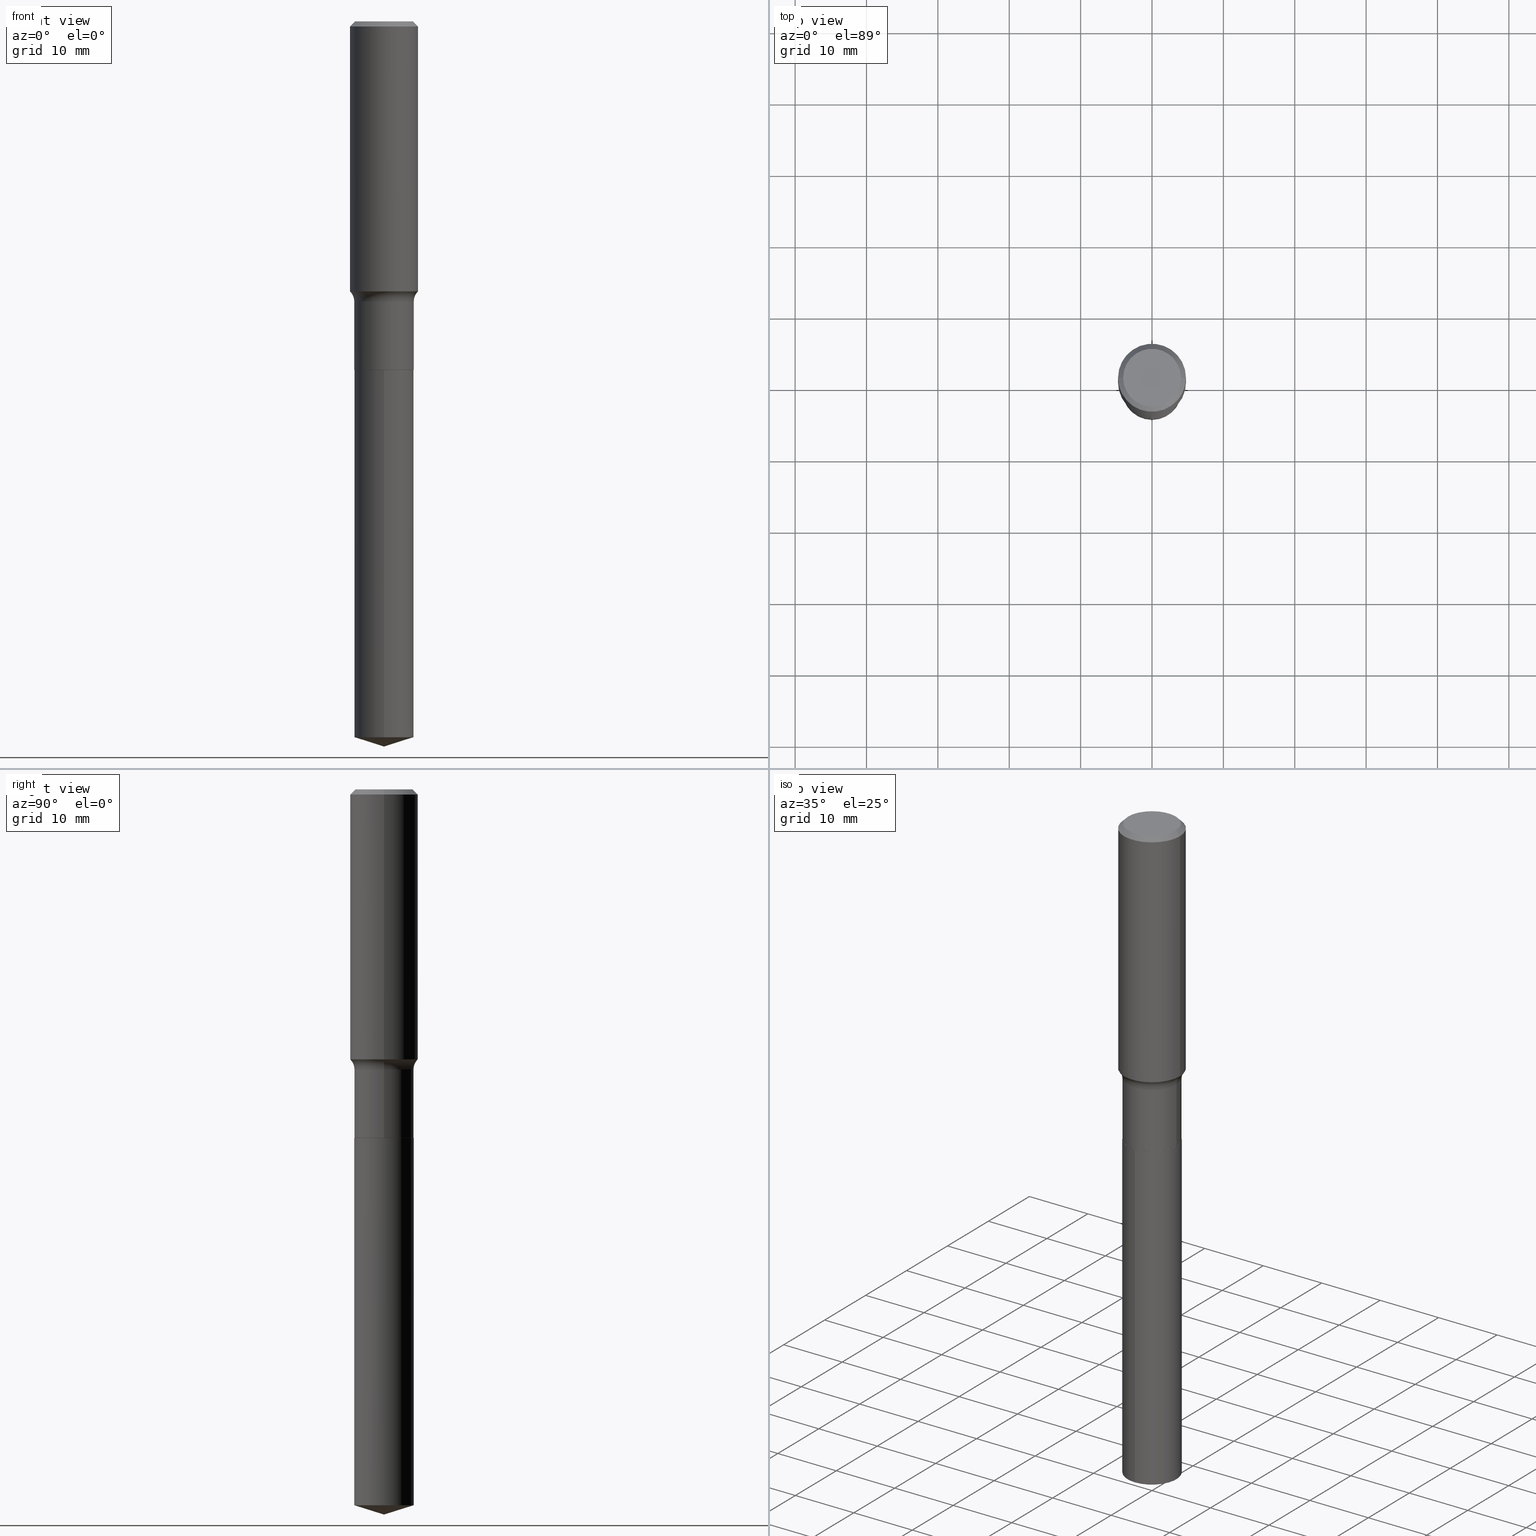
[diagram: canonical four-view strip — front | top / right | iso, engineering-drawing reading convention]
A machine part, canonical four-view strip (front | top / right | iso — engineering-drawing reading convention). The complete STEP part file that produces these views, byte-faithful:
ISO-10303-21;
HEADER;
FILE_DESCRIPTION (( 'STEP AP203' ),
    '1' );
FILE_NAME ('51519.STEP',
    '2024-04-19T12:56:40',
    ( '' ),
    ( '' ),
    'SwSTEP 2.0',
    'SolidWorks 2023',
    '' );
FILE_SCHEMA (( 'CONFIG_CONTROL_DESIGN' ));
ENDSEC;

DATA;
#1 = DIRECTION ( 'NONE',  ( -2.445654235410760522E-29, 3.491215793638075751E-15, 1.000000000000000000 ) ) ;
#2 = DATE_AND_TIME ( #379, #104 ) ;
#3 = AXIS2_PLACEMENT_3D ( 'NONE', #56, #35, #143 ) ;
#4 = CARTESIAN_POINT ( 'NONE',  ( 0.1875000000000001943, -6.507590134814400434E-15, -1.488847892416519159 ) ) ;
#5 = CIRCLE ( 'NONE', #490, 0.07799999999999995826 ) ;
#6 = CARTESIAN_POINT ( 'NONE',  ( 0.1875000000000001110, -1.309305502066175797E-15, 9.142831454617385217E-30 ) ) ;
#7 = ADVANCED_FACE ( 'NONE', ( #116 ), #62, .T. ) ;
#8 = APPROVAL_DATE_TIME ( #118, #383 ) ;
#9 = APPLICATION_CONTEXT ( 'configuration controlled 3d designs of mechanical parts and assemblies' ) ;
#10 = CARTESIAN_POINT ( 'NONE',  ( 0.1635500000000000009, -7.852341531058229130E-15, -1.921899999999999720 ) ) ;
#11 = CC_DESIGN_PERSON_AND_ORGANIZATION_ASSIGNMENT ( #196, #312, ( #170 ) ) ;
#12 = CARTESIAN_POINT ( 'NONE',  ( 0.2420499999999999596, -7.083168192111083892E-15, -1.544599999999999973 ) ) ;
#13 = CIRCLE ( 'NONE', #237, 0.1640500000000000014 ) ;
#14 = AXIS2_PLACEMENT_3D ( 'NONE', #482, #147, #300 ) ;
#15 = AXIS2_PLACEMENT_3D ( 'NONE', #317, #91, #217 ) ;
#16 = ADVANCED_FACE ( 'NONE', ( #262 ), #96, .T. ) ;
#17 = CARTESIAN_POINT ( 'NONE',  ( 4.699946498607213813E-29, -6.710277985122640475E-15, -1.921899999999999720 ) ) ;
#18 = ORIENTED_EDGE ( 'NONE', *, *, #239, .F. ) ;
#19 = CYLINDRICAL_SURFACE ( 'NONE', #478, 0.1875000000000001110 ) ;
#20 = VERTEX_POINT ( 'NONE', #302 ) ;
#21 = DIRECTION ( 'NONE',  ( -2.445468806185136597E-29, 3.491481338843145583E-15, 1.000000000000000000 ) ) ;
#22 = ORIENTED_EDGE ( 'NONE', *, *, #434, .F. ) ;
#23 = DIRECTION ( 'NONE',  ( -1.000000000000000000, 6.982962677686266711E-15, 0.000000000000000000 ) ) ;
#24 = VERTEX_POINT ( 'NONE', #40 ) ;
#25 = DIRECTION ( 'NONE',  ( 1.000000000000000000, -6.982962677686266711E-15, 0.000000000000000000 ) ) ;
#26 = ORIENTED_EDGE ( 'NONE', *, *, #354, .T. ) ;
#27 = COORDINATED_UNIVERSAL_TIME_OFFSET ( 5, 0, .BEHIND. ) ;
#28 = CARTESIAN_POINT ( 'NONE',  ( 3.777271118033562272E-29, -5.392942075977122606E-15, -1.544599999999999973 ) ) ;
#29 = VECTOR ( 'NONE', #362, 39.37007874015748143 ) ;
#30 = EDGE_CURVE ( 'NONE', #293, #356, #195, .T. ) ;
#31 = AXIS2_PLACEMENT_3D ( 'NONE', #160, #382, #84 ) ;
#32 = PERSON_AND_ORGANIZATION ( #142, #78 ) ;
#33 = DIRECTION ( 'NONE',  ( -2.445654235410760522E-29, 3.491215793638075751E-15, 1.000000000000000000 ) ) ;
#34 = DATE_AND_TIME ( #371, #331 ) ;
#35 = DIRECTION ( 'NONE',  ( -2.445468806185136597E-29, 3.491481338843145583E-15, 1.000000000000000000 ) ) ;
#36 = DIRECTION ( 'NONE',  ( -2.445468806185136597E-29, 3.491481338843145583E-15, 1.000000000000000000 ) ) ;
#37 = CC_DESIGN_APPROVAL ( #383, ( #170 ) ) ;
#38 = APPROVAL_ROLE ( '' ) ;
#39 = VECTOR ( 'NONE', #77, 39.37007874015748143 ) ;
#40 = CARTESIAN_POINT ( 'NONE',  ( -0.1593749999999999889, 1.162008633083729827E-15, 3.252968060227205293E-18 ) ) ;
#41 = AXIS2_PLACEMENT_3D ( 'NONE', #17, #258, #247 ) ;
#42 = DATE_TIME_ROLE ( 'classification_date' ) ;
#43 = CARTESIAN_POINT ( 'NONE',  ( 9.655759671398943871E-29, -1.378479120479867509E-14, -3.948275233684402696 ) ) ;
#44 = CARTESIAN_POINT ( 'NONE',  ( 4.699946498607213813E-29, -6.710277985122640475E-15, -1.921899999999999720 ) ) ;
#45 = EDGE_CURVE ( 'NONE', #291, #20, #372, .T. ) ;
#46 = CARTESIAN_POINT ( 'NONE',  ( 0.1635500000000000009, -7.852341531058229130E-15, -1.921899999999999720 ) ) ;
#47 = CARTESIAN_POINT ( 'NONE',  ( 4.699946498607213813E-29, -6.710277985122640475E-15, -1.921899999999999720 ) ) ;
#48 = DIRECTION ( 'NONE',  ( -2.445468806185136877E-29, 3.491481338843145188E-15, 1.000000000000000000 ) ) ;
#49 = FACE_OUTER_BOUND ( 'NONE', #327, .T. ) ;
#50 =( GEOMETRIC_REPRESENTATION_CONTEXT ( 3 ) GLOBAL_UNCERTAINTY_ASSIGNED_CONTEXT ( ( #190 ) ) GLOBAL_UNIT_ASSIGNED_CONTEXT ( ( #338, #113, #106 ) ) REPRESENTATION_CONTEXT ( 'NONE', 'WORKASPACE' ) );
#51 = ORIENTED_EDGE ( 'NONE', *, *, #333, .T. ) ;
#52 = AXIS2_PLACEMENT_3D ( 'NONE', #197, #332, #341 ) ;
#53 = ADVANCED_FACE ( 'NONE', ( #449 ), #244, .F. ) ;
#54 = DIRECTION ( 'NONE',  ( 1.000000000000000000, -6.982962677686264344E-15, 0.000000000000000000 ) ) ;
#55 = ORIENTED_EDGE ( 'NONE', *, *, #466, .F. ) ;
#56 = CARTESIAN_POINT ( 'NONE',  ( 0.000000000000000000, 0.000000000000000000, 0.000000000000000000 ) ) ;
#57 = ORIENTED_EDGE ( 'NONE', *, *, #271, .T. ) ;
#58 = ADVANCED_FACE ( 'NONE', ( #487 ), #151, .T. ) ;
#59 = LINE ( 'NONE', #323, #132 ) ;
#60 = ORIENTED_EDGE ( 'NONE', *, *, #381, .F. ) ;
#61 = CIRCLE ( 'NONE', #316, 0.1640499999999999459 ) ;
#62 = CONICAL_SURFACE ( 'NONE', #80, 124.8659371009143086, 1.265363707695889905 ) ;
#63 = VECTOR ( 'NONE', #344, 39.37007874015748143 ) ;
#64 = CARTESIAN_POINT ( 'NONE',  ( -0.1635500000000000009, -5.545536113612885610E-15, -1.921899999999999720 ) ) ;
#65 = EDGE_LOOP ( 'NONE', ( #400, #98, #406, #181 ) ) ;
#66 = VERTEX_POINT ( 'NONE', #340 ) ;
#67 = EDGE_CURVE ( 'NONE', #24, #66, #489, .T. ) ;
#68 = DIRECTION ( 'NONE',  ( 1.000000000000000000, 0.000000000000000000, 0.000000000000000000 ) ) ;
#69 = ORIENTED_EDGE ( 'NONE', *, *, #115, .T. ) ;
#70 = VECTOR ( 'NONE', #298, 39.37007874015748854 ) ;
#71 = DIRECTION ( 'NONE',  ( -2.438088387897960049E-29, 3.491481338843145188E-15, 1.000000000000000000 ) ) ;
#72 = EDGE_LOOP ( 'NONE', ( #176, #172, #470, #51 ) ) ;
#73 = CARTESIAN_POINT ( 'NONE',  ( 9.781904188785588369E-29, -1.396588387721154763E-14, -4.000000000000000000 ) ) ;
#74 = CARTESIAN_POINT ( 'NONE',  ( 4.699946498607213813E-29, -6.710277985122640475E-15, -1.921899999999999720 ) ) ;
#75 = APPLICATION_PROTOCOL_DEFINITION ( 'international standard', 'config_control_design', 1994, #305 ) ;
#76 = ADVANCED_FACE ( 'NONE', ( #235 ), #479, .T. ) ;
#77 = DIRECTION ( 'NONE',  ( -0.7071067811865454633, 2.468850131082235367E-15, -0.7071067811865495711 ) ) ;
#78 = ORGANIZATION ( 'UNSPECIFIED', 'UNSPECIFIED', '' ) ;
#79 = COORDINATED_UNIVERSAL_TIME_OFFSET ( 5, 0, .BEHIND. ) ;
#80 = AXIS2_PLACEMENT_3D ( 'NONE', #376, #33, #270 ) ;
#81 = LINE ( 'NONE', #10, #418 ) ;
#82 = CIRCLE ( 'NONE', #227, 0.1875000000000000278 ) ;
#83 = APPROVAL ( #425, 'UNSPECIFIED' ) ;
#84 = DIRECTION ( 'NONE',  ( 1.000000000000000000, -6.982962677686265922E-15, 0.000000000000000000 ) ) ;
#85 = APPROVAL_ROLE ( '' ) ;
#86 = CARTESIAN_POINT ( 'NONE',  ( -0.1875000000000001110, 1.332267629550188637E-15, -9.223003294227953596E-30 ) ) ;
#87 = DIRECTION ( 'NONE',  ( -2.445654235410760242E-29, 3.491215793638075751E-15, 1.000000000000000000 ) ) ;
#88 = CIRCLE ( 'NONE', #251, 0.07799999999999995826 ) ;
#89 = PLANE ( 'NONE',  #260 ) ;
#90 = ORIENTED_EDGE ( 'NONE', *, *, #134, .T. ) ;
#91 = DIRECTION ( 'NONE',  ( -2.445654235410760522E-29, 3.491215793638075751E-15, 1.000000000000000000 ) ) ;
#92 = ORIENTED_EDGE ( 'NONE', *, *, #357, .T. ) ;
#93 = CARTESIAN_POINT ( 'NONE',  ( -1.145555027274384725E-15, -0.1640500000000067182, -1.921899999999999276 ) ) ;
#94 = AXIS2_PLACEMENT_3D ( 'NONE', #178, #319, #283 ) ;
#95 = ORIENTED_EDGE ( 'NONE', *, *, #159, .T. ) ;
#96 = CONICAL_SURFACE ( 'NONE', #385, 0.1635500000000000009, 0.7853981633975507526 ) ;
#97 = DIRECTION ( 'NONE',  ( 2.445654235410760522E-29, -3.491215793638075751E-15, -1.000000000000000000 ) ) ;
#98 = ORIENTED_EDGE ( 'NONE', *, *, #152, .T. ) ;
#99 = DIRECTION ( 'NONE',  ( -2.445468806185136597E-29, 3.491481338843145583E-15, 1.000000000000000000 ) ) ;
#100 = EDGE_LOOP ( 'NONE', ( #322, #398, #155, #447 ) ) ;
#101 = CC_DESIGN_PERSON_AND_ORGANIZATION_ASSIGNMENT ( #32, #264, ( #128 ) ) ;
#102 = CARTESIAN_POINT ( 'NONE',  ( -0.1640500000000000014, 1.165645358014444365E-15, -8.069513015563172164E-30 ) ) ;
#103 = ORIENTED_EDGE ( 'NONE', *, *, #299, .F. ) ;
#104 = LOCAL_TIME ( 8, 56, 40.00000000000000000, #279 ) ;
#105 = CIRCLE ( 'NONE', #315, 0.1635500000000000009 ) ;
#106 =( NAMED_UNIT ( * ) SI_UNIT ( $, .STERADIAN. ) SOLID_ANGLE_UNIT ( ) );
#107 = EDGE_CURVE ( 'NONE', #282, #320, #201, .T. ) ;
#108 = DIRECTION ( 'NONE',  ( 1.000000000000000000, -6.982962677686265922E-15, 4.883557194083111780E-29 ) ) ;
#109 = LINE ( 'NONE', #263, #428 ) ;
#110 = APPROVAL_STATUS ( 'not_yet_approved' ) ;
#111 = ORIENTED_EDGE ( 'NONE', *, *, #204, .T. ) ;
#112 = VECTOR ( 'NONE', #416, 39.37007874015748143 ) ;
#113 =( NAMED_UNIT ( * ) PLANE_ANGLE_UNIT ( ) SI_UNIT ( $, .RADIAN. ) );
#114 = ORIENTED_EDGE ( 'NONE', *, *, #45, .F. ) ;
#115 = EDGE_CURVE ( 'NONE', #144, #286, #109, .T. ) ;
#116 = FACE_OUTER_BOUND ( 'NONE', #265, .T. ) ;
#117 = CC_DESIGN_PERSON_AND_ORGANIZATION_ASSIGNMENT ( #164, #199, ( #170 ) ) ;
#118 = DATE_AND_TIME ( #423, #445 ) ;
#119 = DIRECTION ( 'NONE',  ( -6.982962677686265133E-15, -1.000000000000000000, 3.330506545156066257E-15 ) ) ;
#120 = AXIS2_PLACEMENT_3D ( 'NONE', #483, #267, #68 ) ;
#121 = DIRECTION ( 'NONE',  ( -2.445654235410760522E-29, 3.491215793638075751E-15, 1.000000000000000000 ) ) ;
#122 = CARTESIAN_POINT ( 'NONE',  ( 0.1875000000000000278, -1.407503414721139120E-15, -0.02812500000000018804 ) ) ;
#123 = CARTESIAN_POINT ( 'NONE',  ( -0.1635500000000000009, -5.548185340786996811E-15, -1.921899999999999720 ) ) ;
#124 = SECURITY_CLASSIFICATION_LEVEL ( 'unclassified' ) ;
#125 = FACE_OUTER_BOUND ( 'NONE', #303, .T. ) ;
#126 = CLOSED_SHELL ( 'NONE', ( #407, #460, #7, #389, #325 ) ) ;
#127 = FACE_OUTER_BOUND ( 'NONE', #361, .T. ) ;
#128 = PRODUCT_DEFINITION ( 'UNKNOWN', '', #170, #232 ) ;
#129 = FACE_OUTER_BOUND ( 'NONE', #248, .T. ) ;
#130 = ORIENTED_EDGE ( 'NONE', *, *, #229, .F. ) ;
#131 = DIRECTION ( 'NONE',  ( -2.445468806185136597E-29, 3.491481338843145583E-15, 1.000000000000000000 ) ) ;
#132 = VECTOR ( 'NONE', #219, 39.37007874015748143 ) ;
#133 = ORIENTED_EDGE ( 'NONE', *, *, #67, .T. ) ;
#134 = EDGE_CURVE ( 'NONE', #291, #468, #186, .T. ) ;
#135 = CIRCLE ( 'NONE', #228, 0.1875000000000000278 ) ;
#136 = FACE_OUTER_BOUND ( 'NONE', #365, .T. ) ;
#137 = ORIENTED_EDGE ( 'NONE', *, *, #354, .F. ) ;
#138 = APPROVAL ( #110, 'UNSPECIFIED' ) ;
#139 = PRODUCT_DEFINITION_SHAPE ( 'NONE', 'NONE',  #128 ) ;
#140 = DIRECTION ( 'NONE',  ( -2.445468806185136597E-29, 3.491481338843145583E-15, 1.000000000000000000 ) ) ;
#141 = EDGE_LOOP ( 'NONE', ( #60, #111, #69, #475 ) ) ;
#142 = PERSON ( 'UNSPECIFIED', 'UNSPECIFIED', 'UNSPECIFIED', ('UNSPECIFIED'), ('UNSPECIFIED'), ('UNSPECIFIED') ) ;
#143 = DIRECTION ( 'NONE',  ( 1.000000000000000000, -6.982962677686266711E-15, 4.876176775795935232E-29 ) ) ;
#144 = VERTEX_POINT ( 'NONE', #457 ) ;
#145 = EDGE_CURVE ( 'NONE', #468, #291, #177, .T. ) ;
#146 = DIRECTION ( 'NONE',  ( -2.445654235410760522E-29, 3.491215793638075751E-15, 1.000000000000000000 ) ) ;
#147 = DIRECTION ( 'NONE',  ( -2.445468806185136597E-29, 3.491481338843145583E-15, 1.000000000000000000 ) ) ;
#148 = ORIENTED_EDGE ( 'NONE', *, *, #249, .F. ) ;
#149 = DIMENSIONAL_EXPONENTS ( 1.000000000000000000, 0.000000000000000000, 0.000000000000000000, 0.000000000000000000, 0.000000000000000000, 0.000000000000000000, 0.000000000000000000 ) ;
#150 = LENGTH_MEASURE_WITH_UNIT ( LENGTH_MEASURE( 0.02539999999999999897 ), #231 );
#151 = CYLINDRICAL_SURFACE ( 'NONE', #462, 0.1640500000000000014 ) ;
#152 = EDGE_CURVE ( 'NONE', #356, #293, #105, .T. ) ;
#153 = CLOSED_SHELL ( 'NONE', ( #168, #396, #373, #350, #58, #455, #53, #450, #76, #285, #484, #16 ) ) ;
#154 = DIRECTION ( 'NONE',  ( 1.000000000000000000, -6.982962677686265922E-15, 4.876176775795935793E-29 ) ) ;
#155 = ORIENTED_EDGE ( 'NONE', *, *, #257, .F. ) ;
#156 = COORDINATED_UNIVERSAL_TIME_OFFSET ( 5, 0, .BEHIND. ) ;
#157 = ORIENTED_EDGE ( 'NONE', *, *, #414, .F. ) ;
#158 = SHAPE_DEFINITION_REPRESENTATION ( #139, #405 ) ;
#159 = EDGE_CURVE ( 'NONE', #468, #363, #430, .T. ) ;
#160 = CARTESIAN_POINT ( 'NONE',  ( 4.699946498607213813E-29, -6.710277985122640475E-15, -1.921899999999999720 ) ) ;
#161 = VECTOR ( 'NONE', #431, 39.37007874015748143 ) ;
#162 = AXIS2_PLACEMENT_3D ( 'NONE', #348, #458, #198 ) ;
#163 = DIRECTION ( 'NONE',  ( -0.7071067811866199593, 7.493145998870616062E-15, 0.7071067811864750752 ) ) ;
#164 = PERSON_AND_ORGANIZATION ( #142, #78 ) ;
#165 = DIRECTION ( 'NONE',  ( 1.000000000000000000, -6.982962677686264344E-15, 0.000000000000000000 ) ) ;
#166 = ORIENTED_EDGE ( 'NONE', *, *, #67, .F. ) ;
#167 = DIRECTION ( 'NONE',  ( -2.445468806185136597E-29, 3.491481338843145583E-15, 1.000000000000000000 ) ) ;
#168 = ADVANCED_FACE ( 'NONE', ( #313 ), #377, .T. ) ;
#169 = LINE ( 'NONE', #441, #29 ) ;
#170 = PRODUCT_DEFINITION_FORMATION_WITH_SPECIFIED_SOURCE ( 'ANY', '', #443, .NOT_KNOWN. ) ;
#171 = CARTESIAN_POINT ( 'NONE',  ( 4.698723764204121011E-29, -6.708532244453218971E-15, -1.921399999999999997 ) ) ;
#172 = ORIENTED_EDGE ( 'NONE', *, *, #107, .F. ) ;
#173 = CARTESIAN_POINT ( 'NONE',  ( 0.000000000000000000, 0.000000000000000000, 0.000000000000000000 ) ) ;
#174 = EDGE_LOOP ( 'NONE', ( #442, #92 ) ) ;
#175 = CARTESIAN_POINT ( 'NONE',  ( 3.777271118033562272E-29, -5.392942075977122606E-15, -1.544599999999999973 ) ) ;
#176 = ORIENTED_EDGE ( 'NONE', *, *, #182, .F. ) ;
#177 = CIRCLE ( 'NONE', #210, 0.1640500000000000014 ) ;
#178 = CARTESIAN_POINT ( 'NONE',  ( 0.000000000000000000, 0.000000000000000000, 0.000000000000000000 ) ) ;
#179 = EDGE_LOOP ( 'NONE', ( #254, #395, #409, #22 ) ) ;
#180 = PLANE ( 'NONE',  #351 ) ;
#181 = ORIENTED_EDGE ( 'NONE', *, *, #204, .F. ) ;
#182 = EDGE_CURVE ( 'NONE', #320, #491, #88, .T. ) ;
#183 = CALENDAR_DATE ( 2024, 19, 4 ) ;
#184 = CARTESIAN_POINT ( 'NONE',  ( 0.000000000000000000, 0.000000000000000000, 0.000000000000000000 ) ) ;
#185 = SECURITY_CLASSIFICATION ( '', '', #124 ) ;
#186 = CIRCLE ( 'NONE', #452, 0.1640500000000000014 ) ;
#187 = FACE_OUTER_BOUND ( 'NONE', #256, .T. ) ;
#188 = CARTESIAN_POINT ( 'NONE',  ( 4.699946498607213813E-29, -6.710277985122640475E-15, -1.921899999999999720 ) ) ;
#189 = DATE_TIME_ROLE ( 'creation_date' ) ;
#190 = UNCERTAINTY_MEASURE_WITH_UNIT (LENGTH_MEASURE( 1.000000000000000082E-05 ), #338, 'distance_accuracy_value', 'NONE');
#191 = ORIENTED_EDGE ( 'NONE', *, *, #429, .F. ) ;
#192 = PERSON_AND_ORGANIZATION ( #142, #78 ) ;
#193 = DIRECTION ( 'NONE',  ( 1.000000000000000000, -6.982962677686266711E-15, 4.876176775795935232E-29 ) ) ;
#194 = VECTOR ( 'NONE', #48, 39.37007874015748143 ) ;
#195 = CIRCLE ( 'NONE', #393, 0.1635500000000000009 ) ;
#196 = PERSON_AND_ORGANIZATION ( #142, #78 ) ;
#197 = CARTESIAN_POINT ( 'NONE',  ( 6.877881017395742746E-31, -9.819791265496411169E-17, -0.02812500000000018804 ) ) ;
#198 = DIRECTION ( 'NONE',  ( 1.000000000000000000, -6.982962677686267499E-15, 4.876227444496879000E-29 ) ) ;
#199 = PERSON_AND_ORGANIZATION_ROLE ( 'design_supplier' ) ;
#200 = CARTESIAN_POINT ( 'NONE',  ( 9.782616941643042088E-29, -1.396486317455230301E-14, -4.000000000000000000 ) ) ;
#201 = CIRCLE ( 'NONE', #14, 0.1875000000000001943 ) ;
#202 = CARTESIAN_POINT ( 'NONE',  ( 4.698723764204121011E-29, -6.708532244453218971E-15, -1.921399999999999997 ) ) ;
#203 = LINE ( 'NONE', #6, #194 ) ;
#204 = EDGE_CURVE ( 'NONE', #289, #144, #221, .T. ) ;
#205 = DIRECTION ( 'NONE',  ( 0.7071067811866199593, -2.468850131083015945E-15, 0.7071067811864750752 ) ) ;
#206 = CC_DESIGN_PERSON_AND_ORGANIZATION_ASSIGNMENT ( #224, #448, ( #443 ) ) ;
#207 = MANIFOLD_SOLID_BREP ( 'Body-Move/Copy2[1]', #126 ) ;
#208 = TOROIDAL_SURFACE ( 'NONE', #236, 0.2420499999999999596, 0.07799999999999999989 ) ;
#209 = DIRECTION ( 'NONE',  ( 2.445468806185136597E-29, -3.491481338843145583E-15, -1.000000000000000000 ) ) ;
#210 = AXIS2_PLACEMENT_3D ( 'NONE', #281, #1, #343 ) ;
#211 = VERTEX_POINT ( 'NONE', #122 ) ;
#212 = APPROVAL_PERSON_ORGANIZATION ( #192, #138, #480 ) ;
#213 = EDGE_CURVE ( 'NONE', #24, #446, #370, .T. ) ;
#214 = DIRECTION ( 'NONE',  ( -2.445654235410760522E-29, 3.491215793638075751E-15, 1.000000000000000000 ) ) ;
#215 = ORIENTED_EDGE ( 'NONE', *, *, #466, .T. ) ;
#216 = MANIFOLD_SOLID_BREP ( 'Body-Move/Copy2[2]', #153 ) ;
#217 = DIRECTION ( 'NONE',  ( -6.982962677686265133E-15, -1.000000000000000000, 3.330506545156066257E-15 ) ) ;
#218 = ORIENTED_EDGE ( 'NONE', *, *, #492, .T. ) ;
#219 = DIRECTION ( 'NONE',  ( 0.7071067811865454633, -7.319954787623248157E-15, -0.7071067811865495711 ) ) ;
#220 = VERTEX_POINT ( 'NONE', #200 ) ;
#221 = CIRCLE ( 'NONE', #308, 0.1640500000000000014 ) ;
#222 = DIRECTION ( 'NONE',  ( 1.000000000000000000, -6.982962677686265922E-15, 4.883557194083111780E-29 ) ) ;
#223 = ORIENTED_EDGE ( 'NONE', *, *, #30, .T. ) ;
#224 = PERSON_AND_ORGANIZATION ( #142, #78 ) ;
#225 = ORIENTED_EDGE ( 'NONE', *, *, #134, .F. ) ;
#226 = ORIENTED_EDGE ( 'NONE', *, *, #30, .F. ) ;
#227 = AXIS2_PLACEMENT_3D ( 'NONE', #250, #394, #54 ) ;
#228 = AXIS2_PLACEMENT_3D ( 'NONE', #346, #167, #310 ) ;
#229 = EDGE_CURVE ( 'NONE', #211, #66, #135, .T. ) ;
#230 = ORIENTED_EDGE ( 'NONE', *, *, #107, .T. ) ;
#231 =( LENGTH_UNIT ( ) NAMED_UNIT ( * ) SI_UNIT ( $, .METRE. ) );
#232 = DESIGN_CONTEXT ( 'detailed design', #9, 'design' ) ;
#233 = DIRECTION ( 'NONE',  ( -2.445468806185136597E-29, 3.491481338843145583E-15, 1.000000000000000000 ) ) ;
#234 = CARTESIAN_POINT ( 'NONE',  ( -0.1640499999999999459, -4.885091802200726621E-15, -1.544599999999999973 ) ) ;
#235 = FACE_OUTER_BOUND ( 'NONE', #324, .T. ) ;
#236 = AXIS2_PLACEMENT_3D ( 'NONE', #175, #399, #222 ) ;
#237 = AXIS2_PLACEMENT_3D ( 'NONE', #390, #214, #472 ) ;
#238 = CARTESIAN_POINT ( 'NONE',  ( -0.1875000000000001943, -3.866017003198034421E-15, -1.488847892416519159 ) ) ;
#239 = EDGE_CURVE ( 'NONE', #282, #286, #5, .T. ) ;
#240 = DIRECTION ( 'NONE',  ( 1.000000000000000000, -6.982962677686265922E-15, 0.000000000000000000 ) ) ;
#241 = CC_DESIGN_DATE_AND_TIME_ASSIGNMENT ( #34, #189, ( #128 ) ) ;
#242 = APPROVAL_DATE_TIME ( #2, #83 ) ;
#243 = DIRECTION ( 'NONE',  ( -1.000000000000000000, 6.982962677686265922E-15, -4.876176775795935793E-29 ) ) ;
#244 = TOROIDAL_SURFACE ( 'NONE', #360, 0.2420499999999999596, 0.07799999999999999989 ) ;
#245 = DIRECTION ( 'NONE',  ( -2.445654235410760522E-29, 3.491215793638075751E-15, 1.000000000000000000 ) ) ;
#246 = DIRECTION ( 'NONE',  ( 1.000000000000000000, -6.982962677686265922E-15, 0.000000000000000000 ) ) ;
#247 = DIRECTION ( 'NONE',  ( -6.982962677686265133E-15, -1.000000000000000000, 3.330506545156066257E-15 ) ) ;
#248 = EDGE_LOOP ( 'NONE', ( #230, #57, #130, #103 ) ) ;
#249 = EDGE_CURVE ( 'NONE', #320, #282, #280, .T. ) ;
#250 = CARTESIAN_POINT ( 'NONE',  ( 6.877881017395742746E-31, -9.819791265496411169E-17, -0.02812500000000018804 ) ) ;
#251 = AXIS2_PLACEMENT_3D ( 'NONE', #349, #380, #459 ) ;
#252 = ORIENTED_EDGE ( 'NONE', *, *, #229, .T. ) ;
#253 = CYLINDRICAL_SURFACE ( 'NONE', #3, 0.1640500000000000014 ) ;
#254 = ORIENTED_EDGE ( 'NONE', *, *, #271, .F. ) ;
#255 = DIRECTION ( 'NONE',  ( 1.000000000000000000, -6.982962677686266711E-15, 0.000000000000000000 ) ) ;
#256 = EDGE_LOOP ( 'NONE', ( #226, #427 ) ) ;
#257 = EDGE_CURVE ( 'NONE', #363, #20, #471, .T. ) ;
#258 = DIRECTION ( 'NONE',  ( -2.445654235410760522E-29, 3.491215793638075751E-15, 1.000000000000000000 ) ) ;
#259 = ORIENTED_EDGE ( 'NONE', *, *, #381, .T. ) ;
#260 = AXIS2_PLACEMENT_3D ( 'NONE', #388, #276, #243 ) ;
#261 = LINE ( 'NONE', #73, #70 ) ;
#262 = FACE_OUTER_BOUND ( 'NONE', #65, .T. ) ;
#263 = CARTESIAN_POINT ( 'NONE',  ( 0.1640500000000000014, -1.145555027274432057E-15, 7.999368000693231542E-30 ) ) ;
#264 = PERSON_AND_ORGANIZATION_ROLE ( 'creator' ) ;
#265 = EDGE_LOOP ( 'NONE', ( #191, #215, #225 ) ) ;
#266 = AXIS2_PLACEMENT_3D ( 'NONE', #47, #121, #119 ) ;
#267 = DIRECTION ( 'NONE',  ( 0.000000000000000000, 0.000000000000000000, 1.000000000000000000 ) ) ;
#268 = CARTESIAN_POINT ( 'NONE',  ( 1.165645358014491105E-15, 0.1640499999999932568, -1.921900000000000386 ) ) ;
#269 = FACE_OUTER_BOUND ( 'NONE', #485, .T. ) ;
#270 = DIRECTION ( 'NONE',  ( -6.982962677686265922E-15, -1.000000000000000000, 3.500519750498725731E-15 ) ) ;
#271 = EDGE_CURVE ( 'NONE', #320, #66, #275, .T. ) ;
#272 = DIRECTION ( 'NONE',  ( -2.445468806185136597E-29, 3.491481338843145583E-15, 1.000000000000000000 ) ) ;
#273 = LOCAL_TIME ( 8, 56, 40.00000000000000000, #79 ) ;
#274 = CALENDAR_DATE ( 2024, 19, 4 ) ;
#275 = LINE ( 'NONE', #86, #63 ) ;
#276 = DIRECTION ( 'NONE',  ( 2.438088387897960049E-29, -3.491481338843145188E-15, -1.000000000000000000 ) ) ;
#277 = EDGE_CURVE ( 'NONE', #356, #289, #304, .T. ) ;
#278 = CARTESIAN_POINT ( 'NONE',  ( 3.640931078059081513E-29, -5.198284632748223059E-15, -1.488847892416519159 ) ) ;
#279 = COORDINATED_UNIVERSAL_TIME_OFFSET ( 5, 0, .BEHIND. ) ;
#280 = CIRCLE ( 'NONE', #413, 0.1875000000000001943 ) ;
#281 = CARTESIAN_POINT ( 'NONE',  ( 9.655759671398943871E-29, -1.378479120479867509E-14, -3.948275233684402696 ) ) ;
#282 = VERTEX_POINT ( 'NONE', #4 ) ;
#283 = DIRECTION ( 'NONE',  ( 1.000000000000000000, -6.982962677686266711E-15, 4.876176775795935793E-29 ) ) ;
#284 = CYLINDRICAL_SURFACE ( 'NONE', #94, 0.1875000000000001110 ) ;
#285 = ADVANCED_FACE ( 'NONE', ( #125 ), #89, .F. ) ;
#286 = VERTEX_POINT ( 'NONE', #384 ) ;
#287 = CIRCLE ( 'NONE', #368, 0.1640499999999999459 ) ;
#288 = DIRECTION ( 'NONE',  ( 1.000000000000000000, -6.982962677686266711E-15, 4.876176775795935793E-29 ) ) ;
#289 = VERTEX_POINT ( 'NONE', #426 ) ;
#290 = FACE_OUTER_BOUND ( 'NONE', #174, .T. ) ;
#291 = VERTEX_POINT ( 'NONE', #454 ) ;
#292 = DIRECTION ( 'NONE',  ( 1.000000000000000000, -6.982962677686267499E-15, 4.876227444496879000E-29 ) ) ;
#293 = VERTEX_POINT ( 'NONE', #46 ) ;
#294 = CC_DESIGN_DATE_AND_TIME_ASSIGNMENT ( #421, #42, ( #185 ) ) ;
#295 = CARTESIAN_POINT ( 'NONE',  ( -8.650333925410697060E-28, 1.234840671685305030E-13, 35.37007874015748143 ) ) ;
#296 = VECTOR ( 'NONE', #163, 39.37007874015748143 ) ;
#297 = ORIENTED_EDGE ( 'NONE', *, *, #277, .T. ) ;
#298 = DIRECTION ( 'NONE',  ( -6.659769872151627355E-15, -0.9537169507482260444, 0.3007057995042755061 ) ) ;
#299 = EDGE_CURVE ( 'NONE', #282, #211, #203, .T. ) ;
#300 = DIRECTION ( 'NONE',  ( 1.000000000000000000, -6.982962677686265922E-15, 0.000000000000000000 ) ) ;
#301 = ORIENTED_EDGE ( 'NONE', *, *, #429, .T. ) ;
#302 = CARTESIAN_POINT ( 'NONE',  ( 1.165645358014540803E-15, 0.1640499999999932568, -1.921900000000000386 ) ) ;
#303 = EDGE_LOOP ( 'NONE', ( #473, #369 ) ) ;
#304 = LINE ( 'NONE', #123, #296 ) ;
#305 = APPLICATION_CONTEXT ( 'configuration controlled 3d designs of mechanical parts and assemblies' ) ;
#306 = DIRECTION ( 'NONE',  ( -2.445468806185136597E-29, 3.491481338843145583E-15, 1.000000000000000000 ) ) ;
#307 = AXIS2_PLACEMENT_3D ( 'NONE', #465, #97, #402 ) ;
#308 = AXIS2_PLACEMENT_3D ( 'NONE', #202, #306, #165 ) ;
#309 = DIRECTION ( 'NONE',  ( -2.445468806185136877E-29, 3.491481338843145188E-15, 1.000000000000000000 ) ) ;
#310 = DIRECTION ( 'NONE',  ( 1.000000000000000000, -6.982962677686264344E-15, 0.000000000000000000 ) ) ;
#311 = ORIENTED_EDGE ( 'NONE', *, *, #182, .T. ) ;
#312 = PERSON_AND_ORGANIZATION_ROLE ( 'creator' ) ;
#313 = FACE_OUTER_BOUND ( 'NONE', #404, .T. ) ;
#314 = APPROVAL_PERSON_ORGANIZATION ( #342, #83, #85 ) ;
#315 = AXIS2_PLACEMENT_3D ( 'NONE', #44, #272, #240 ) ;
#316 = AXIS2_PLACEMENT_3D ( 'NONE', #488, #334, #25 ) ;
#317 = CARTESIAN_POINT ( 'NONE',  ( 4.699946498607213813E-29, -6.710277985122640475E-15, -1.921899999999999720 ) ) ;
#318 = EDGE_CURVE ( 'NONE', #293, #144, #81, .T. ) ;
#319 = DIRECTION ( 'NONE',  ( -2.445468806185136597E-29, 3.491481338843145583E-15, 1.000000000000000000 ) ) ;
#320 = VERTEX_POINT ( 'NONE', #238 ) ;
#321 = CARTESIAN_POINT ( 'NONE',  ( 6.877881017395742746E-31, -9.819791265496411169E-17, -0.02812500000000018804 ) ) ;
#322 = ORIENTED_EDGE ( 'NONE', *, *, #145, .T. ) ;
#323 = CARTESIAN_POINT ( 'NONE',  ( 0.1875000000000000278, -1.384541287237126674E-15, -0.02812500000000018804 ) ) ;
#324 = EDGE_LOOP ( 'NONE', ( #137, #453, #133, #433 ) ) ;
#325 = ADVANCED_FACE ( 'NONE', ( #290 ), #397, .F. ) ;
#326 = FACE_OUTER_BOUND ( 'NONE', #100, .T. ) ;
#327 = EDGE_LOOP ( 'NONE', ( #157, #26, #252, #166 ) ) ;
#328 = ORIENTED_EDGE ( 'NONE', *, *, #318, .F. ) ;
#329 = EDGE_CURVE ( 'NONE', #144, #289, #345, .T. ) ;
#330 = DATE_AND_TIME ( #183, #481 ) ;
#331 = LOCAL_TIME ( 8, 56, 40.00000000000000000, #410 ) ;
#332 = DIRECTION ( 'NONE',  ( 2.445468806185136597E-29, -3.491481338843145583E-15, -1.000000000000000000 ) ) ;
#333 = EDGE_CURVE ( 'NONE', #286, #491, #287, .T. ) ;
#334 = DIRECTION ( 'NONE',  ( -2.445468806185136597E-29, 3.491481338843145583E-15, 1.000000000000000000 ) ) ;
#335 = DIRECTION ( 'NONE',  ( 1.000000000000000000, -6.982962677686265922E-15, 0.000000000000000000 ) ) ;
#336 = PERSON_AND_ORGANIZATION ( #142, #78 ) ;
#337 = DIRECTION ( 'NONE',  ( 1.000000000000000000, -6.982962677686265922E-15, 0.000000000000000000 ) ) ;
#338 =( CONVERSION_BASED_UNIT ( 'INCH', #150 ) LENGTH_UNIT ( ) NAMED_UNIT ( #149 ) );
#339 = CC_DESIGN_APPROVAL ( #83, ( #185 ) ) ;
#340 = CARTESIAN_POINT ( 'NONE',  ( -0.1875000000000000278, -1.315973643151404751E-15, -0.02812500000000018804 ) ) ;
#341 = DIRECTION ( 'NONE',  ( -1.000000000000000000, 6.982962677686266711E-15, 0.000000000000000000 ) ) ;
#342 = PERSON_AND_ORGANIZATION ( #142, #78 ) ;
#343 = DIRECTION ( 'NONE',  ( -6.982962677686265133E-15, -1.000000000000000000, 3.330506545156066257E-15 ) ) ;
#344 = DIRECTION ( 'NONE',  ( -2.445468806185136877E-29, 3.491481338843145188E-15, 1.000000000000000000 ) ) ;
#345 = CIRCLE ( 'NONE', #401, 0.1640500000000000014 ) ;
#346 = CARTESIAN_POINT ( 'NONE',  ( 6.877881017395742746E-31, -9.819791265496411169E-17, -0.02812500000000018804 ) ) ;
#347 = PERSON_AND_ORGANIZATION ( #142, #78 ) ;
#348 = CARTESIAN_POINT ( 'NONE',  ( -7.955031918821655674E-47, 1.135767727816384611E-32, 3.252968060235159768E-18 ) ) ;
#349 = CARTESIAN_POINT ( 'NONE',  ( -0.2420499999999999596, -3.673073384069800985E-15, -1.544599999999999973 ) ) ;
#350 = ADVANCED_FACE ( 'NONE', ( #127 ), #208, .F. ) ;
#351 = AXIS2_PLACEMENT_3D ( 'NONE', #444, #71, #154 ) ;
#352 = CYLINDRICAL_SURFACE ( 'NONE', #41, 0.1640500000000000014 ) ;
#353 = ORIENTED_EDGE ( 'NONE', *, *, #333, .F. ) ;
#354 = EDGE_CURVE ( 'NONE', #446, #211, #59, .T. ) ;
#355 = CARTESIAN_POINT ( 'NONE',  ( 0.1593749999999999889, -1.238966577815982298E-15, 3.252968060243383104E-18 ) ) ;
#356 = VERTEX_POINT ( 'NONE', #64 ) ;
#357 = EDGE_CURVE ( 'NONE', #20, #363, #13, .T. ) ;
#358 = ORIENTED_EDGE ( 'NONE', *, *, #329, .T. ) ;
#359 = CYLINDRICAL_SURFACE ( 'NONE', #15, 0.1640500000000000014 ) ;
#360 = AXIS2_PLACEMENT_3D ( 'NONE', #28, #374, #108 ) ;
#361 = EDGE_LOOP ( 'NONE', ( #148, #311, #218, #18 ) ) ;
#362 = DIRECTION ( 'NONE',  ( 6.776566513254253404E-15, 0.9537169507482281539, 0.3007057995042689003 ) ) ;
#363 = VERTEX_POINT ( 'NONE', #93 ) ;
#364 = APPLICATION_PROTOCOL_DEFINITION ( 'international standard', 'config_control_design', 1994, #9 ) ;
#365 = EDGE_LOOP ( 'NONE', ( #114, #90, #95, #391 ) ) ;
#366 = CC_DESIGN_PERSON_AND_ORGANIZATION_ASSIGNMENT ( #347, #386, ( #185 ) ) ;
#367 = APPROVAL_DATE_TIME ( #330, #138 ) ;
#368 = AXIS2_PLACEMENT_3D ( 'NONE', #439, #99, #255 ) ;
#369 = ORIENTED_EDGE ( 'NONE', *, *, #414, .T. ) ;
#370 = CIRCLE ( 'NONE', #162, 0.1593749999999999889 ) ;
#371 = CALENDAR_DATE ( 2024, 19, 4 ) ;
#372 = LINE ( 'NONE', #268, #112 ) ;
#373 = ADVANCED_FACE ( 'NONE', ( #129 ), #284, .T. ) ;
#374 = DIRECTION ( 'NONE',  ( -2.445468806185136597E-29, 3.491481338843145583E-15, 1.000000000000000000 ) ) ;
#375 = CC_DESIGN_SECURITY_CLASSIFICATION ( #185, ( #170 ) ) ;
#376 = CARTESIAN_POINT ( 'NONE',  ( -8.650333925410697060E-28, 1.234840671685305030E-13, 35.37007874015748143 ) ) ;
#377 = CONICAL_SURFACE ( 'NONE', #31, 0.1635500000000000009, 0.7853981633975507526 ) ;
#378 = CC_DESIGN_APPROVAL ( #138, ( #128 ) ) ;
#379 = CALENDAR_DATE ( 2024, 19, 4 ) ;
#380 = DIRECTION ( 'NONE',  ( 7.105427357601001859E-15, 1.000000000000000000, -3.491481338843145583E-15 ) ) ;
#381 = EDGE_CURVE ( 'NONE', #289, #491, #432, .T. ) ;
#382 = DIRECTION ( 'NONE',  ( -2.445468806185136597E-29, 3.491481338843145583E-15, 1.000000000000000000 ) ) ;
#383 = APPROVAL ( #486, 'UNSPECIFIED' ) ;
#384 = CARTESIAN_POINT ( 'NONE',  ( 0.1640499999999999459, -6.538497103251554269E-15, -1.544599999999999973 ) ) ;
#385 = AXIS2_PLACEMENT_3D ( 'NONE', #188, #412, #335 ) ;
#386 = PERSON_AND_ORGANIZATION_ROLE ( 'classification_officer' ) ;
#387 = DIRECTION ( 'NONE',  ( -6.982962677686265133E-15, -1.000000000000000000, 3.330506545156066257E-15 ) ) ;
#388 = CARTESIAN_POINT ( 'NONE',  ( -3.977515959410827837E-47, 5.678838639081923055E-33, 1.626484030117579884E-18 ) ) ;
#389 = ADVANCED_FACE ( 'NONE', ( #136 ), #359, .T. ) ;
#390 = CARTESIAN_POINT ( 'NONE',  ( 4.699946498607213813E-29, -6.710277985122640475E-15, -1.921899999999999720 ) ) ;
#391 = ORIENTED_EDGE ( 'NONE', *, *, #357, .F. ) ;
#392 = APPROVAL_PERSON_ORGANIZATION ( #336, #383, #38 ) ;
#393 = AXIS2_PLACEMENT_3D ( 'NONE', #74, #233, #337 ) ;
#394 = DIRECTION ( 'NONE',  ( -2.445468806185136597E-29, 3.491481338843145583E-15, 1.000000000000000000 ) ) ;
#395 = ORIENTED_EDGE ( 'NONE', *, *, #249, .T. ) ;
#396 = ADVANCED_FACE ( 'NONE', ( #49 ), #456, .T. ) ;
#397 = PLANE ( 'NONE',  #307 ) ;
#398 = ORIENTED_EDGE ( 'NONE', *, *, #45, .T. ) ;
#399 = DIRECTION ( 'NONE',  ( -2.445468806185136597E-29, 3.491481338843145583E-15, 1.000000000000000000 ) ) ;
#400 = ORIENTED_EDGE ( 'NONE', *, *, #277, .F. ) ;
#401 = AXIS2_PLACEMENT_3D ( 'NONE', #171, #21, #467 ) ;
#402 = DIRECTION ( 'NONE',  ( 6.982962677686265922E-15, 1.000000000000000000, -3.491215793638075751E-15 ) ) ;
#403 = CONICAL_SURFACE ( 'NONE', #463, 124.8659371009143086, 1.265363707695889905 ) ;
#404 = EDGE_LOOP ( 'NONE', ( #223, #297, #451, #328 ) ) ;
#405 = ADVANCED_BREP_SHAPE_REPRESENTATION ( '51519', ( #207, #216, #120 ), #50 ) ;
#406 = ORIENTED_EDGE ( 'NONE', *, *, #318, .T. ) ;
#407 = ADVANCED_FACE ( 'NONE', ( #326 ), #352, .T. ) ;
#408 = MECHANICAL_CONTEXT ( 'NONE', #305, 'mechanical' ) ;
#409 = ORIENTED_EDGE ( 'NONE', *, *, #299, .T. ) ;
#410 = COORDINATED_UNIVERSAL_TIME_OFFSET ( 5, 0, .BEHIND. ) ;
#411 = CIRCLE ( 'NONE', #420, 0.1593749999999999889 ) ;
#412 = DIRECTION ( 'NONE',  ( -2.445468806185136597E-29, 3.491481338843145583E-15, 1.000000000000000000 ) ) ;
#413 = AXIS2_PLACEMENT_3D ( 'NONE', #278, #461, #246 ) ;
#414 = EDGE_CURVE ( 'NONE', #446, #24, #411, .T. ) ;
#415 = DIRECTION ( 'NONE',  ( -6.982962677686265922E-15, -1.000000000000000000, 3.500519750498725731E-15 ) ) ;
#416 = DIRECTION ( 'NONE',  ( -2.445654235410760242E-29, 3.491215793638075751E-15, 1.000000000000000000 ) ) ;
#417 = CARTESIAN_POINT ( 'NONE',  ( -0.1875000000000000278, 1.211107589411211094E-15, -0.02812500000000018804 ) ) ;
#418 = VECTOR ( 'NONE', #205, 39.37007874015748143 ) ;
#419 = DIRECTION ( 'NONE',  ( -6.982962677686266711E-15, -1.000000000000000000, 3.491481338843145583E-15 ) ) ;
#420 = AXIS2_PLACEMENT_3D ( 'NONE', #474, #140, #292 ) ;
#421 = DATE_AND_TIME ( #274, #273 ) ;
#422 = DIRECTION ( 'NONE',  ( 1.000000000000000000, -6.982962677686274599E-15, 0.000000000000000000 ) ) ;
#423 = CALENDAR_DATE ( 2024, 19, 4 ) ;
#424 = CARTESIAN_POINT ( 'NONE',  ( -1.145555027274384725E-15, -0.1640500000000067182, -1.921899999999999276 ) ) ;
#425 = APPROVAL_STATUS ( 'not_yet_approved' ) ;
#426 = CARTESIAN_POINT ( 'NONE',  ( -0.1640500000000000014, -4.885091802200726621E-15, -1.921399999999999997 ) ) ;
#427 = ORIENTED_EDGE ( 'NONE', *, *, #152, .F. ) ;
#428 = VECTOR ( 'NONE', #309, 39.37007874015748143 ) ;
#429 = EDGE_CURVE ( 'NONE', #220, #291, #169, .T. ) ;
#430 = LINE ( 'NONE', #424, #436 ) ;
#431 = DIRECTION ( 'NONE',  ( -2.445468806185136877E-29, 3.491481338843145188E-15, 1.000000000000000000 ) ) ;
#432 = LINE ( 'NONE', #102, #161 ) ;
#433 = ORIENTED_EDGE ( 'NONE', *, *, #434, .T. ) ;
#434 = EDGE_CURVE ( 'NONE', #66, #211, #82, .T. ) ;
#435 = AXIS2_PLACEMENT_3D ( 'NONE', #321, #209, #23 ) ;
#436 = VECTOR ( 'NONE', #87, 39.37007874015748143 ) ;
#437 = FACE_OUTER_BOUND ( 'NONE', #141, .T. ) ;
#438 = ORIENTED_EDGE ( 'NONE', *, *, #115, .F. ) ;
#439 = CARTESIAN_POINT ( 'NONE',  ( 3.777271118033562272E-29, -5.392942075977122606E-15, -1.544599999999999973 ) ) ;
#440 = EDGE_LOOP ( 'NONE', ( #358, #259, #353, #438 ) ) ;
#441 = CARTESIAN_POINT ( 'NONE',  ( 9.782623191644264432E-29, -1.396486317455230301E-14, -4.000000000000000000 ) ) ;
#442 = ORIENTED_EDGE ( 'NONE', *, *, #257, .T. ) ;
#443 = PRODUCT ( '51519', '51519', '', ( #408 ) ) ;
#444 = CARTESIAN_POINT ( 'NONE',  ( 4.699946498607213813E-29, -6.710277985122640475E-15, -1.921899999999999720 ) ) ;
#445 = LOCAL_TIME ( 8, 56, 40.00000000000000000, #156 ) ;
#446 = VERTEX_POINT ( 'NONE', #355 ) ;
#447 = ORIENTED_EDGE ( 'NONE', *, *, #159, .F. ) ;
#448 = PERSON_AND_ORGANIZATION_ROLE ( 'design_owner' ) ;
#449 = FACE_OUTER_BOUND ( 'NONE', #72, .T. ) ;
#450 = ADVANCED_FACE ( 'NONE', ( #469 ), #19, .T. ) ;
#451 = ORIENTED_EDGE ( 'NONE', *, *, #329, .F. ) ;
#452 = AXIS2_PLACEMENT_3D ( 'NONE', #43, #245, #387 ) ;
#453 = ORIENTED_EDGE ( 'NONE', *, *, #213, .F. ) ;
#454 = CARTESIAN_POINT ( 'NONE',  ( 1.165645358014540803E-15, 0.1640499999999862346, -3.948275233684403585 ) ) ;
#455 = ADVANCED_FACE ( 'NONE', ( #437 ), #253, .T. ) ;
#456 = CONICAL_SURFACE ( 'NONE', #435, 0.1875000000000000278, 0.7853981633974453924 ) ;
#457 = CARTESIAN_POINT ( 'NONE',  ( 0.1640500000000000014, -7.854087271727651423E-15, -1.921399999999999997 ) ) ;
#458 = DIRECTION ( 'NONE',  ( -2.445468806185136597E-29, 3.491481338843145583E-15, 1.000000000000000000 ) ) ;
#459 = DIRECTION ( 'NONE',  ( -1.000000000000000000, 7.105427357601001859E-15, 0.000000000000000000 ) ) ;
#460 = ADVANCED_FACE ( 'NONE', ( #269 ), #403, .T. ) ;
#461 = DIRECTION ( 'NONE',  ( -2.445468806185136597E-29, 3.491481338843145583E-15, 1.000000000000000000 ) ) ;
#462 = AXIS2_PLACEMENT_3D ( 'NONE', #184, #36, #193 ) ;
#463 = AXIS2_PLACEMENT_3D ( 'NONE', #295, #146, #415 ) ;
#464 = PRODUCT_RELATED_PRODUCT_CATEGORY ( 'detail', '', ( #443 ) ) ;
#465 = CARTESIAN_POINT ( 'NONE',  ( 4.699946498607213813E-29, -6.710277985122640475E-15, -1.921899999999999720 ) ) ;
#466 = EDGE_CURVE ( 'NONE', #220, #468, #261, .T. ) ;
#467 = DIRECTION ( 'NONE',  ( 1.000000000000000000, -6.982962677686264344E-15, 0.000000000000000000 ) ) ;
#468 = VERTEX_POINT ( 'NONE', #476 ) ;
#469 = FACE_OUTER_BOUND ( 'NONE', #179, .T. ) ;
#470 = ORIENTED_EDGE ( 'NONE', *, *, #239, .T. ) ;
#471 = CIRCLE ( 'NONE', #266, 0.1640500000000000014 ) ;
#472 = DIRECTION ( 'NONE',  ( -6.982962677686265133E-15, -1.000000000000000000, 3.330506545156066257E-15 ) ) ;
#473 = ORIENTED_EDGE ( 'NONE', *, *, #213, .T. ) ;
#474 = CARTESIAN_POINT ( 'NONE',  ( -7.955031918821655674E-47, 1.135767727816384611E-32, 3.252968060235159768E-18 ) ) ;
#475 = ORIENTED_EDGE ( 'NONE', *, *, #492, .F. ) ;
#476 = CARTESIAN_POINT ( 'NONE',  ( -1.145555027274335422E-15, -0.1640500000000138237, -3.948275233684402252 ) ) ;
#477 = ORIENTED_EDGE ( 'NONE', *, *, #145, .F. ) ;
#478 = AXIS2_PLACEMENT_3D ( 'NONE', #173, #131, #288 ) ;
#479 = CONICAL_SURFACE ( 'NONE', #52, 0.1875000000000000278, 0.7853981633974453924 ) ;
#480 = APPROVAL_ROLE ( '' ) ;
#481 = LOCAL_TIME ( 8, 56, 40.00000000000000000, #27 ) ;
#482 = CARTESIAN_POINT ( 'NONE',  ( 3.640931078059081513E-29, -5.198284632748223059E-15, -1.488847892416519159 ) ) ;
#483 = CARTESIAN_POINT ( 'NONE',  ( 0.000000000000000000, 0.000000000000000000, 0.000000000000000000 ) ) ;
#484 = ADVANCED_FACE ( 'NONE', ( #187 ), #180, .F. ) ;
#485 = EDGE_LOOP ( 'NONE', ( #55, #301, #477 ) ) ;
#486 = APPROVAL_STATUS ( 'not_yet_approved' ) ;
#487 = FACE_OUTER_BOUND ( 'NONE', #440, .T. ) ;
#488 = CARTESIAN_POINT ( 'NONE',  ( 3.777271118033562272E-29, -5.392942075977122606E-15, -1.544599999999999973 ) ) ;
#489 = LINE ( 'NONE', #417, #39 ) ;
#490 = AXIS2_PLACEMENT_3D ( 'NONE', #12, #419, #422 ) ;
#491 = VERTEX_POINT ( 'NONE', #234 ) ;
#492 = EDGE_CURVE ( 'NONE', #491, #286, #61, .T. ) ;
ENDSEC;
END-ISO-10303-21;
